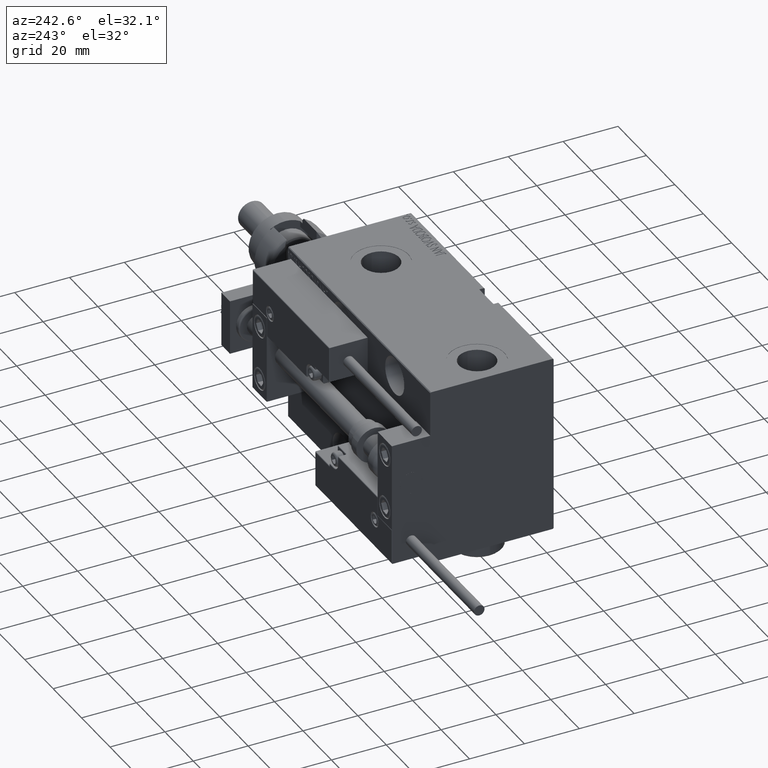
[diagram: clean part render]
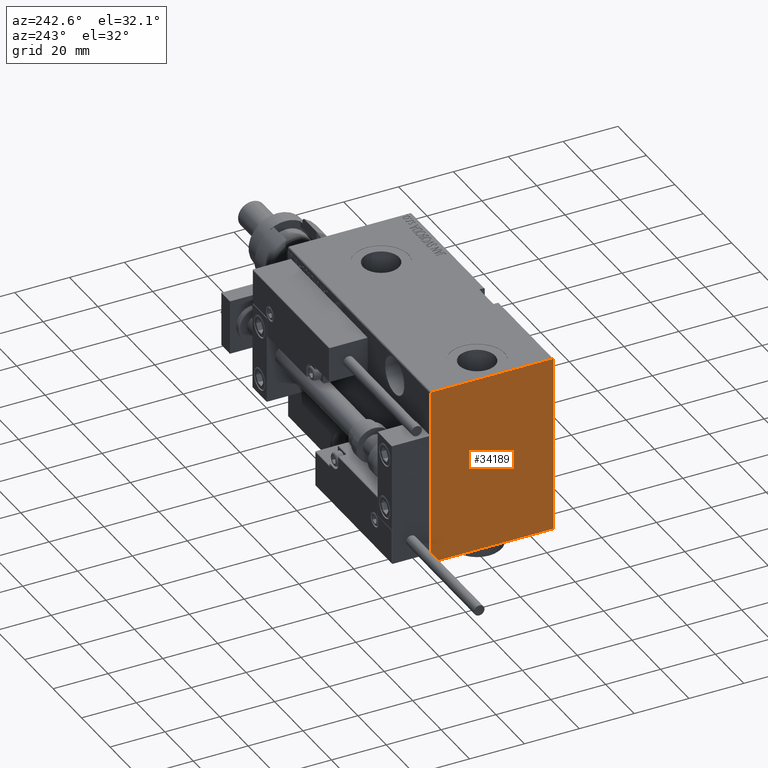
[diagram: same view with one face highlighted and labeled with its STEP entity id]
A machine part, auxiliary view. The second image highlights one B-rep face of the part: STEP entity #34189.
In plain terms, the highlighted planar face has unit normal (-1, 0, 0).
Its self-contained STEP definition (entity closure, byte-faithful):
#71 = EDGE_CURVE ( 'NONE', #5401, #41234, #42642, .T. ) ;
#81 = CARTESIAN_POINT ( 'NONE',  ( 100.0000000000000000, 22.50000000000000355, -32.50000000000000000 ) ) ;
#328 = ORIENTED_EDGE ( 'NONE', *, *, #71, .T. ) ;
#626 = VECTOR ( 'NONE', #19010, 1000.000000000000000 ) ;
#682 = VECTOR ( 'NONE', #22719, 1000.000000000000114 ) ;
#1362 = EDGE_CURVE ( 'NONE', #4175, #13369, #26093, .T. ) ;
#1705 = EDGE_CURVE ( 'NONE', #3864, #4175, #30148, .T. ) ;
#2239 = CARTESIAN_POINT ( 'NONE',  ( 100.0000000000000000, -22.49999999999999645, 32.19999999999998153 ) ) ;
#3094 = VECTOR ( 'NONE', #36169, 1000.000000000000114 ) ;
#3195 = CARTESIAN_POINT ( 'NONE',  ( 100.0000000000000000, 22.49999999999999645, 32.19999999999998153 ) ) ;
#3864 = VERTEX_POINT ( 'NONE', #32585 ) ;
#4175 = VERTEX_POINT ( 'NONE', #23999 ) ;
#4725 = DIRECTION ( 'NONE',  ( -0.000000000000000000, -0.7071067811865392461, 0.7071067811865556774 ) ) ;
#5401 = VERTEX_POINT ( 'NONE', #17884 ) ;
#7337 = LINE ( 'NONE', #23244, #3094 ) ;
#7856 = CARTESIAN_POINT ( 'NONE',  ( 100.0000000000000000, -22.19999999999997442, -32.50000000000000000 ) ) ;
#7921 = EDGE_CURVE ( 'NONE', #25741, #17019, #43327, .T. ) ;
#8076 = CARTESIAN_POINT ( 'NONE',  ( 100.0000000000000000, -27.34999999999998721, 27.34999999999998721 ) ) ;
#9022 = DIRECTION ( 'NONE',  ( 0.000000000000000000, 0.000000000000000000, -1.000000000000000000 ) ) ;
#9391 = DIRECTION ( 'NONE',  ( 0.000000000000000000, 0.000000000000000000, -1.000000000000000000 ) ) ;
#9412 = CARTESIAN_POINT ( 'NONE',  ( 100.0000000000000000, 22.49999999999999645, 32.50000000000000711 ) ) ;
#11368 = VERTEX_POINT ( 'NONE', #7856 ) ;
#12692 = DIRECTION ( 'NONE',  ( 0.000000000000000000, -1.000000000000000000, -1.541976423090495633E-16 ) ) ;
#13116 = CARTESIAN_POINT ( 'NONE',  ( 100.0000000000000000, -22.49999999999999645, 32.50000000000000000 ) ) ;
#13369 = VERTEX_POINT ( 'NONE', #3195 ) ;
#14599 = ORIENTED_EDGE ( 'NONE', *, *, #45665, .T. ) ;
#16421 = ORIENTED_EDGE ( 'NONE', *, *, #1362, .T. ) ;
#16505 = CARTESIAN_POINT ( 'NONE',  ( 100.0000000000000000, 27.35000000000025011, 27.34999999999961418 ) ) ;
#16541 = ORIENTED_EDGE ( 'NONE', *, *, #49549, .T. ) ;
#16765 = DIRECTION ( 'NONE',  ( 0.000000000000000000, -1.067522139062650425E-16, 1.000000000000000000 ) ) ;
#17019 = VERTEX_POINT ( 'NONE', #33332 ) ;
#17884 = CARTESIAN_POINT ( 'NONE',  ( 100.0000000000000000, 22.19999999999997442, 32.50000000000000711 ) ) ;
#18111 = ORIENTED_EDGE ( 'NONE', *, *, #39162, .T. ) ;
#19010 = DIRECTION ( 'NONE',  ( 0.000000000000000000, 1.000000000000000000, 0.000000000000000000 ) ) ;
#19263 = ORIENTED_EDGE ( 'NONE', *, *, #1705, .T. ) ;
#22719 = DIRECTION ( 'NONE',  ( -0.000000000000000000, 0.7071067811865474617, 0.7071067811865474617 ) ) ;
#23244 = CARTESIAN_POINT ( 'NONE',  ( 100.0000000000000000, -27.34999999999998721, -27.34999999999998721 ) ) ;
#23999 = CARTESIAN_POINT ( 'NONE',  ( 100.0000000000000000, 22.50000000000000355, -32.19999999999998153 ) ) ;
#25116 = VECTOR ( 'NONE', #4725, 1000.000000000000114 ) ;
#25741 = VERTEX_POINT ( 'NONE', #2239 ) ;
#25864 = ORIENTED_EDGE ( 'NONE', *, *, #7921, .T. ) ;
#26093 = LINE ( 'NONE', #81, #39231 ) ;
#26936 = PLANE ( 'NONE',  #46180 ) ;
#27013 = VECTOR ( 'NONE', #9022, 1000.000000000000000 ) ;
#27220 = CARTESIAN_POINT ( 'NONE',  ( 100.0000000000000000, 0.000000000000000000, 0.000000000000000000 ) ) ;
#28662 = LINE ( 'NONE', #8076, #34062 ) ;
#29806 = CARTESIAN_POINT ( 'NONE',  ( 100.0000000000000000, -22.19999999999996021, 32.50000000000000000 ) ) ;
#30148 = LINE ( 'NONE', #47176, #682 ) ;
#30216 = ORIENTED_EDGE ( 'NONE', *, *, #33816, .T. ) ;
#30854 = LINE ( 'NONE', #34979, #626 ) ;
#31043 = FACE_OUTER_BOUND ( 'NONE', #51069, .T. ) ;
#31325 = DIRECTION ( 'NONE',  ( 1.000000000000000000, 0.000000000000000000, 0.000000000000000000 ) ) ;
#32585 = CARTESIAN_POINT ( 'NONE',  ( 100.0000000000000000, 22.19999999999996732, -32.50000000000000000 ) ) ;
#33332 = CARTESIAN_POINT ( 'NONE',  ( 100.0000000000000000, -22.49999999999999645, -32.19999999999998153 ) ) ;
#33816 = EDGE_CURVE ( 'NONE', #11368, #3864, #30854, .T. ) ;
#34062 = VECTOR ( 'NONE', #53354, 1000.000000000000114 ) ;
#34189 = ADVANCED_FACE ( 'NONE', ( #31043 ), #26936, .T. ) ;
#34979 = CARTESIAN_POINT ( 'NONE',  ( 100.0000000000000000, -22.49999999999999645, -32.50000000000000000 ) ) ;
#36169 = DIRECTION ( 'NONE',  ( -0.000000000000000000, 0.7071067811865474617, -0.7071067811865474617 ) ) ;
#39162 = EDGE_CURVE ( 'NONE', #17019, #11368, #7337, .T. ) ;
#39231 = VECTOR ( 'NONE', #16765, 1000.000000000000000 ) ;
#41234 = VERTEX_POINT ( 'NONE', #29806 ) ;
#42642 = LINE ( 'NONE', #9412, #45712 ) ;
#43327 = LINE ( 'NONE', #13116, #27013 ) ;
#45665 = EDGE_CURVE ( 'NONE', #13369, #5401, #50016, .T. ) ;
#45712 = VECTOR ( 'NONE', #12692, 1000.000000000000000 ) ;
#46180 = AXIS2_PLACEMENT_3D ( 'NONE', #27220, #31325, #9391 ) ;
#47176 = CARTESIAN_POINT ( 'NONE',  ( 100.0000000000000000, 27.34999999999999076, -27.34999999999999076 ) ) ;
#49549 = EDGE_CURVE ( 'NONE', #41234, #25741, #28662, .T. ) ;
#50016 = LINE ( 'NONE', #16505, #25116 ) ;
#51069 = EDGE_LOOP ( 'NONE', ( #30216, #19263, #16421, #14599, #328, #16541, #25864, #18111 ) ) ;
#53354 = DIRECTION ( 'NONE',  ( 0.000000000000000000, -0.7071067811865474617, -0.7071067811865474617 ) ) ;